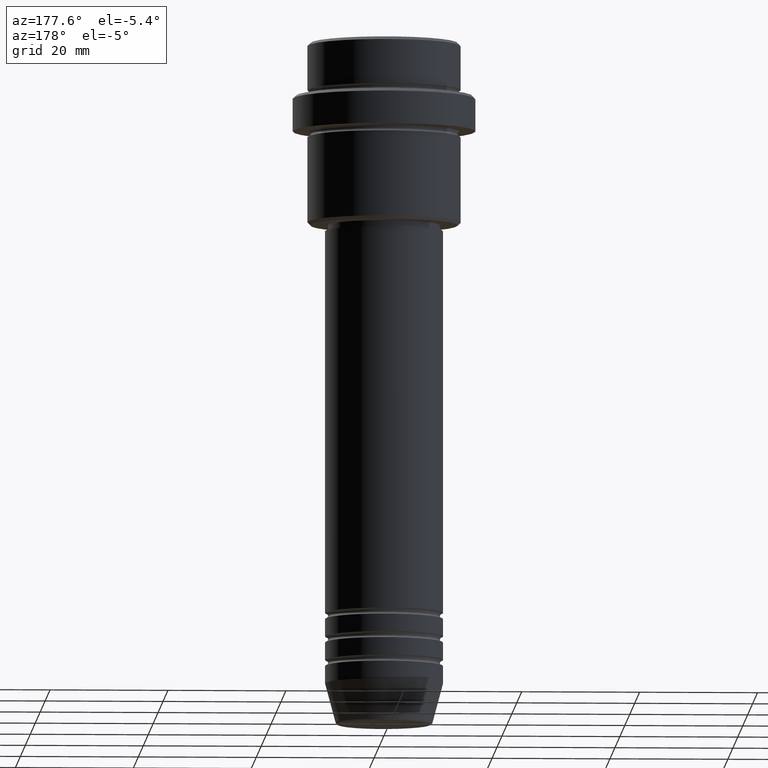
[diagram: clean part render]
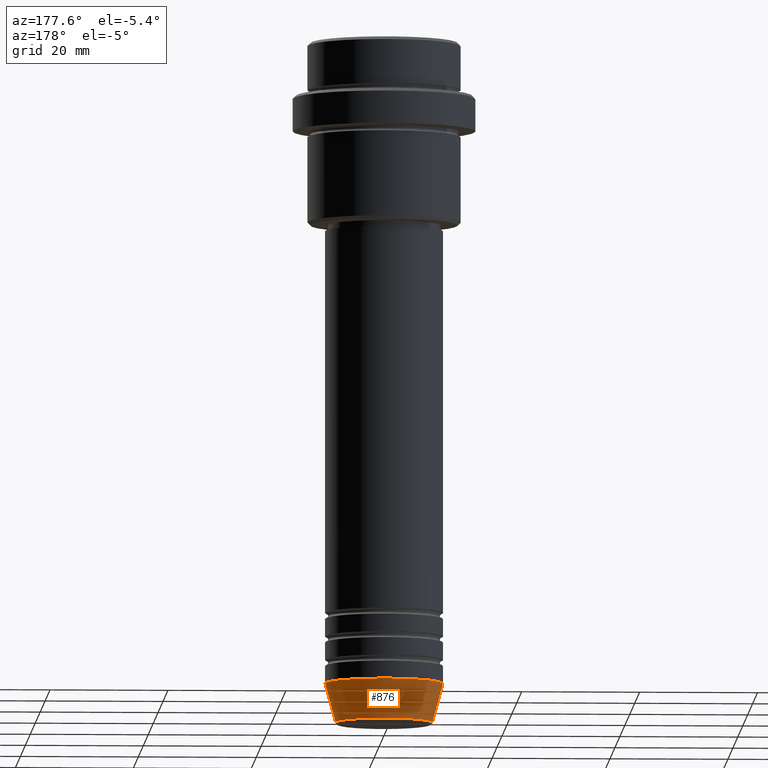
[diagram: same view with one face highlighted and labeled with its STEP entity id]
A machine part, auxiliary view. The second image highlights one B-rep face of the part: STEP entity #876.
In plain terms, the highlighted conical surface has half-angle 15 deg.
Its self-contained STEP definition (entity closure, byte-faithful):
#101 = VERTEX_POINT ( 'NONE', #1073 ) ;
#137 = EDGE_CURVE ( 'NONE', #568, #1305, #1265, .T. ) ;
#159 = EDGE_CURVE ( 'NONE', #101, #385, #308, .T. ) ;
#248 = EDGE_CURVE ( 'NONE', #385, #1305, #577, .T. ) ;
#297 = DIRECTION ( 'NONE',  ( -0.000000000000000000, -0.000000000000000000, 1.000000000000000000 ) ) ;
#301 = ORIENTED_EDGE ( 'NONE', *, *, #991, .F. ) ;
#308 = CIRCLE ( 'NONE', #379, 8.223655072137191269 ) ;
#330 = LINE ( 'NONE', #444, #1069 ) ;
#351 = CARTESIAN_POINT ( 'NONE',  ( 0.000000000000000000, 0.000000000000000000, -115.6294095225512706 ) ) ;
#379 = AXIS2_PLACEMENT_3D ( 'NONE', #351, #692, #898 ) ;
#385 = VERTEX_POINT ( 'NONE', #1398 ) ;
#401 = CARTESIAN_POINT ( 'NONE',  ( -10.00000000000000000, 1.224646799147353256E-15, -109.0000000000000142 ) ) ;
#444 = CARTESIAN_POINT ( 'NONE',  ( 10.00000000000000000, 0.000000000000000000, -109.0000000000000142 ) ) ;
#464 = CARTESIAN_POINT ( 'NONE',  ( -10.00000000000000000, 1.224646799147353256E-15, -109.0000000000000142 ) ) ;
#506 = FACE_OUTER_BOUND ( 'NONE', #1039, .T. ) ;
#560 = ORIENTED_EDGE ( 'NONE', *, *, #137, .F. ) ;
#562 = VECTOR ( 'NONE', #1229, 1000.000000000000114 ) ;
#568 = VERTEX_POINT ( 'NONE', #859 ) ;
#577 = LINE ( 'NONE', #464, #562 ) ;
#692 = DIRECTION ( 'NONE',  ( -0.000000000000000000, -0.000000000000000000, 1.000000000000000000 ) ) ;
#731 = CARTESIAN_POINT ( 'NONE',  ( 0.000000000000000000, 0.000000000000000000, -109.0000000000000142 ) ) ;
#748 = DIRECTION ( 'NONE',  ( -0.000000000000000000, -0.000000000000000000, 1.000000000000000000 ) ) ;
#851 = CARTESIAN_POINT ( 'NONE',  ( 0.000000000000000000, 0.000000000000000000, -109.0000000000000142 ) ) ;
#859 = CARTESIAN_POINT ( 'NONE',  ( 10.00000000000000000, 0.000000000000000000, -109.0000000000000142 ) ) ;
#876 = ADVANCED_FACE ( 'NONE', ( #506 ), #1089, .T. ) ;
#898 = DIRECTION ( 'NONE',  ( 1.000000000000000000, 0.000000000000000000, 0.000000000000000000 ) ) ;
#917 = ORIENTED_EDGE ( 'NONE', *, *, #248, .T. ) ;
#941 = DIRECTION ( 'NONE',  ( 1.000000000000000000, 0.000000000000000000, 0.000000000000000000 ) ) ;
#950 = AXIS2_PLACEMENT_3D ( 'NONE', #731, #297, #941 ) ;
#991 = EDGE_CURVE ( 'NONE', #101, #568, #330, .T. ) ;
#1039 = EDGE_LOOP ( 'NONE', ( #1282, #917, #560, #301 ) ) ;
#1041 = AXIS2_PLACEMENT_3D ( 'NONE', #851, #748, #1184 ) ;
#1069 = VECTOR ( 'NONE', #1076, 1000.000000000000114 ) ;
#1073 = CARTESIAN_POINT ( 'NONE',  ( 8.223655072137191269, 0.000000000000000000, -115.6294095225512706 ) ) ;
#1076 = DIRECTION ( 'NONE',  ( 0.2588190451025215166, 0.000000000000000000, 0.9659258262890679791 ) ) ;
#1089 = CONICAL_SURFACE ( 'NONE', #950, 10.00000000000000000, 0.2617993877991502960 ) ;
#1184 = DIRECTION ( 'NONE',  ( 1.000000000000000000, 0.000000000000000000, 0.000000000000000000 ) ) ;
#1229 = DIRECTION ( 'NONE',  ( -0.2588190451025215166, 3.169619151431774802E-17, 0.9659258262890679791 ) ) ;
#1265 = CIRCLE ( 'NONE', #1041, 10.00000000000000000 ) ;
#1282 = ORIENTED_EDGE ( 'NONE', *, *, #159, .T. ) ;
#1305 = VERTEX_POINT ( 'NONE', #401 ) ;
#1398 = CARTESIAN_POINT ( 'NONE',  ( -8.223655072137191269, 1.115877042642912054E-15, -115.6294095225512706 ) ) ;